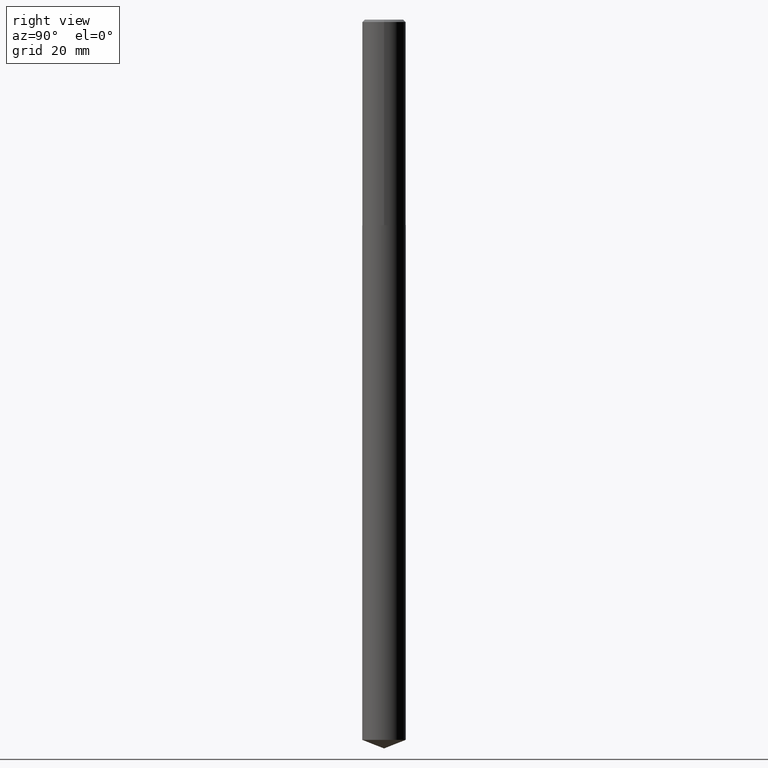
[diagram: clean part render]
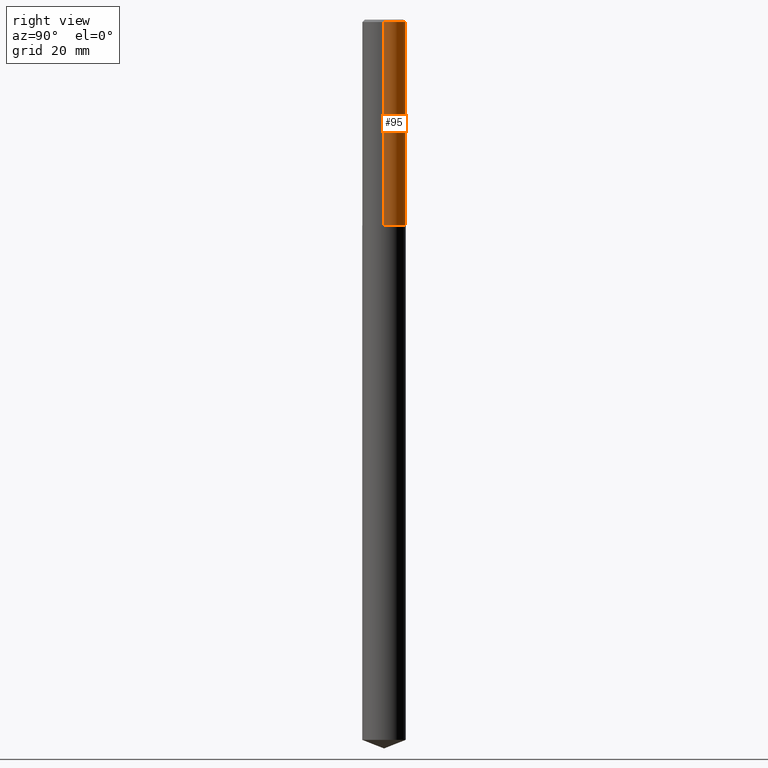
[diagram: same view with one face highlighted and labeled with its STEP entity id]
A machine part, right view. The second image highlights one B-rep face of the part: STEP entity #95.
In plain terms, the highlighted cylindrical surface (edge-blend (fillet) strip) has radius 7.0002 mm, axis along (-0, 0, 1).
Its self-contained STEP definition (entity closure, byte-faithful):
#2 = DIRECTION ( 'NONE',  ( 1.000000000000000000, -6.982962677686265922E-15, 0.000000000000000000 ) ) ;
#3 = VERTEX_POINT ( 'NONE', #264 ) ;
#4 = CIRCLE ( 'NONE', #383, 0.2756000000000002892 ) ;
#11 = VERTEX_POINT ( 'NONE', #324 ) ;
#27 = EDGE_CURVE ( 'NONE', #67, #11, #4, .T. ) ;
#30 = LINE ( 'NONE', #77, #96 ) ;
#35 = CIRCLE ( 'NONE', #47, 0.2756000000000000116 ) ;
#37 = DIRECTION ( 'NONE',  ( 1.000000000000000000, -6.982962677686267499E-15, 0.000000000000000000 ) ) ;
#47 = AXIS2_PLACEMENT_3D ( 'NONE', #112, #210, #37 ) ;
#51 = EDGE_CURVE ( 'NONE', #11, #381, #58, .T. ) ;
#58 = LINE ( 'NONE', #197, #378 ) ;
#67 = VERTEX_POINT ( 'NONE', #135 ) ;
#77 = CARTESIAN_POINT ( 'NONE',  ( 0.2756000000000001782, -1.924504513970336137E-15, 1.343874319409360828E-29 ) ) ;
#80 = EDGE_CURVE ( 'NONE', #3, #381, #35, .T. ) ;
#86 = AXIS2_PLACEMENT_3D ( 'NONE', #360, #352, #192 ) ;
#95 = ADVANCED_FACE ( 'NONE', ( #184 ), #357, .T. ) ;
#96 = VECTOR ( 'NONE', #385, 39.37007874015748143 ) ;
#110 = CARTESIAN_POINT ( 'NONE',  ( 6.354306145991456393E-29, -9.072265110850027889E-15, -2.598399999999999377 ) ) ;
#112 = CARTESIAN_POINT ( 'NONE',  ( 7.642090019328603538E-31, -1.091087918388490390E-16, -0.03125000000000021511 ) ) ;
#119 = ORIENTED_EDGE ( 'NONE', *, *, #387, .F. ) ;
#135 = CARTESIAN_POINT ( 'NONE',  ( 0.2756000000000002892, -1.099676962482036442E-14, -2.598399999999999377 ) ) ;
#160 = ORIENTED_EDGE ( 'NONE', *, *, #51, .T. ) ;
#184 = FACE_OUTER_BOUND ( 'NONE', #193, .T. ) ;
#192 = DIRECTION ( 'NONE',  ( 1.000000000000000000, -6.982962677686265922E-15, 4.876176775795935793E-29 ) ) ;
#193 = EDGE_LOOP ( 'NONE', ( #322, #160, #291, #119 ) ) ;
#197 = CARTESIAN_POINT ( 'NONE',  ( -0.2756000000000001782, 1.958255779754837378E-15, -1.355658510874252848E-29 ) ) ;
#210 = DIRECTION ( 'NONE',  ( -2.445468806185136597E-29, 3.491481338843145583E-15, 1.000000000000000000 ) ) ;
#264 = CARTESIAN_POINT ( 'NONE',  ( 0.2756000000000000116, -2.033613305809184449E-15, -0.03125000000000021511 ) ) ;
#266 = DIRECTION ( 'NONE',  ( -2.445468806185136597E-29, 3.491481338843145583E-15, 1.000000000000000000 ) ) ;
#291 = ORIENTED_EDGE ( 'NONE', *, *, #80, .F. ) ;
#307 = DIRECTION ( 'NONE',  ( -2.445468806185136877E-29, 3.491481338843145188E-15, 1.000000000000000000 ) ) ;
#322 = ORIENTED_EDGE ( 'NONE', *, *, #27, .T. ) ;
#324 = CARTESIAN_POINT ( 'NONE',  ( -0.2756000000000002892, -7.114009331095189722E-15, -2.598399999999999377 ) ) ;
#331 = CARTESIAN_POINT ( 'NONE',  ( -0.2756000000000000116, -2.632431171589600722E-15, -0.03125000000000021511 ) ) ;
#352 = DIRECTION ( 'NONE',  ( -2.445468806185136597E-29, 3.491481338843145583E-15, 1.000000000000000000 ) ) ;
#357 = CYLINDRICAL_SURFACE ( 'NONE', #86, 0.2756000000000001782 ) ;
#360 = CARTESIAN_POINT ( 'NONE',  ( 0.000000000000000000, 0.000000000000000000, 0.000000000000000000 ) ) ;
#378 = VECTOR ( 'NONE', #307, 39.37007874015748143 ) ;
#381 = VERTEX_POINT ( 'NONE', #331 ) ;
#383 = AXIS2_PLACEMENT_3D ( 'NONE', #110, #266, #2 ) ;
#385 = DIRECTION ( 'NONE',  ( -2.445468806185136877E-29, 3.491481338843145188E-15, 1.000000000000000000 ) ) ;
#387 = EDGE_CURVE ( 'NONE', #67, #3, #30, .T. ) ;